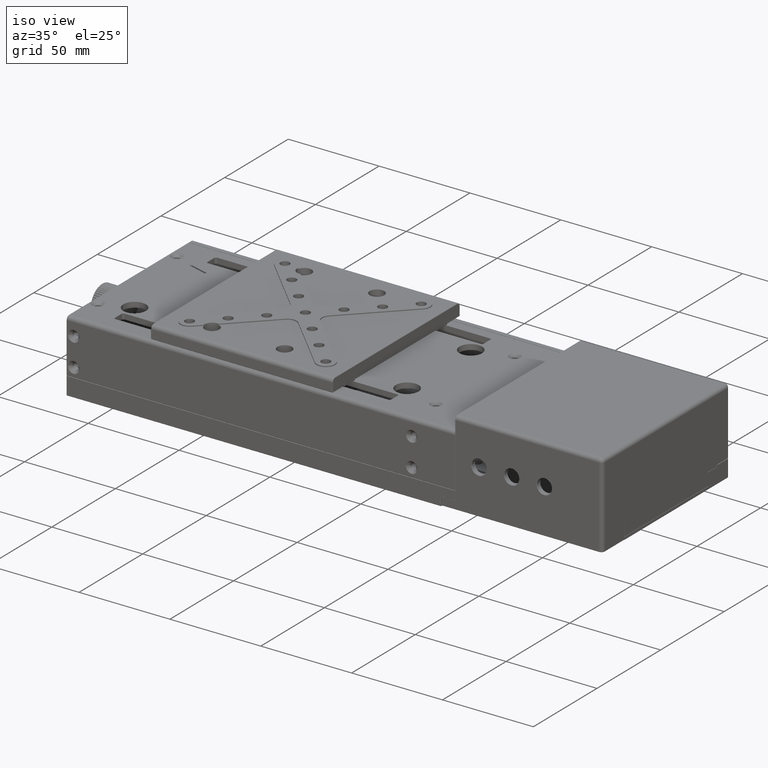
[diagram: clean part render]
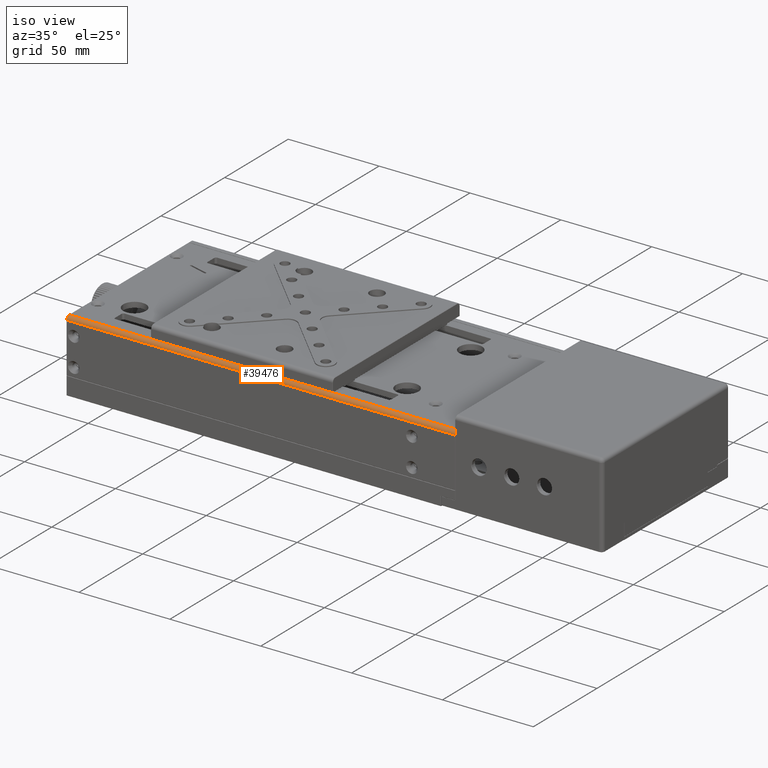
[diagram: same view with one face highlighted and labeled with its STEP entity id]
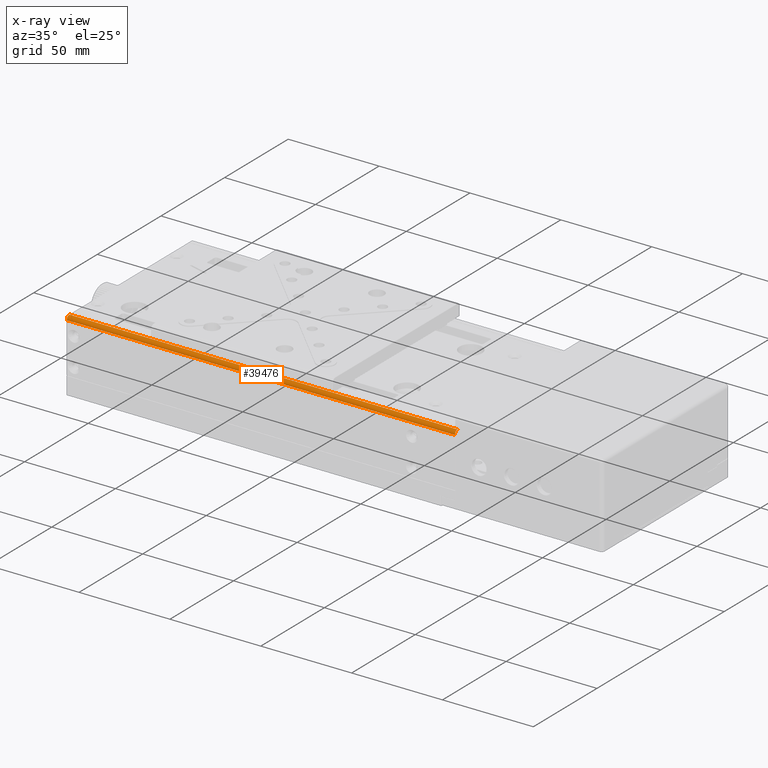
[diagram: x-ray of the same camera — body ghosted, the highlighted face saturated]
A machine part, iso view. The second image highlights one B-rep face of the part: STEP entity #39476.
The next image is the same camera in x-ray: the body ghosted, the highlighted face saturated — about 0% of this face is hidden behind the body in this view.
In plain terms, the highlighted cylindrical surface (edge-blend (fillet) strip) has radius 2 mm, axis along (1, 0, 0).
Its self-contained STEP definition (entity closure, byte-faithful):
#180 = AXIS2_PLACEMENT_3D ( 'NONE', #71434, #20059, #65802 ) ;
#3603 = DIRECTION ( 'NONE',  ( -1.000000000000000000, 0.000000000000000000, 0.000000000000000000 ) ) ;
#4531 = VERTEX_POINT ( 'NONE', #20828 ) ;
#6115 = VECTOR ( 'NONE', #21438, 1000.000000000000000 ) ;
#7153 = VERTEX_POINT ( 'NONE', #46581 ) ;
#9299 = EDGE_CURVE ( 'NONE', #33664, #29696, #60857, .T. ) ;
#15078 = DIRECTION ( 'NONE',  ( -1.000000000000000000, 0.000000000000000000, 0.000000000000000000 ) ) ;
#17126 = ORIENTED_EDGE ( 'NONE', *, *, #29145, .F. ) ;
#18609 = CYLINDRICAL_SURFACE ( 'NONE', #42995, 2.000000000000001776 ) ;
#20059 = DIRECTION ( 'NONE',  ( 1.000000000000000000, 0.000000000000000000, 0.000000000000000000 ) ) ;
#20828 = CARTESIAN_POINT ( 'NONE',  ( -168.7607912002899866, -38.00575141257550627, 34.50000000000000000 ) ) ;
#20831 = CARTESIAN_POINT ( 'NONE',  ( 44.83920879970990114, -40.00575141257549916, 32.50000000000000000 ) ) ;
#21438 = DIRECTION ( 'NONE',  ( 1.000000000000000000, 0.000000000000000000, 0.000000000000000000 ) ) ;
#23881 = CARTESIAN_POINT ( 'NONE',  ( -168.9607912002899752, -38.00575141257550627, 32.50000000000000000 ) ) ;
#26866 = CARTESIAN_POINT ( 'NONE',  ( 44.83920879970990114, -38.00575141257550627, 32.50000000000000000 ) ) ;
#28356 = CIRCLE ( 'NONE', #31988, 2.000000000000001776 ) ;
#28616 = ORIENTED_EDGE ( 'NONE', *, *, #67483, .T. ) ;
#29145 = EDGE_CURVE ( 'NONE', #4531, #7153, #57061, .T. ) ;
#29511 = DIRECTION ( 'NONE',  ( 0.000000000000000000, 1.000000000000000000, 0.000000000000000000 ) ) ;
#29696 = VERTEX_POINT ( 'NONE', #37565 ) ;
#31988 = AXIS2_PLACEMENT_3D ( 'NONE', #26866, #3603, #50456 ) ;
#31993 = ORIENTED_EDGE ( 'NONE', *, *, #34877, .T. ) ;
#33664 = VERTEX_POINT ( 'NONE', #20831 ) ;
#34877 = EDGE_CURVE ( 'NONE', #33664, #7153, #28356, .T. ) ;
#37565 = CARTESIAN_POINT ( 'NONE',  ( -168.7607912002899866, -40.00575141257549916, 32.50000000000000000 ) ) ;
#39476 = ADVANCED_FACE ( 'NONE', ( #53496 ), #18609, .T. ) ;
#41113 = DIRECTION ( 'NONE',  ( 1.000000000000000000, 0.000000000000000000, 0.000000000000000000 ) ) ;
#42995 = AXIS2_PLACEMENT_3D ( 'NONE', #23881, #41113, #29511 ) ;
#45406 = CARTESIAN_POINT ( 'NONE',  ( 45.03920879970989688, -38.00575141257550627, 34.50000000000000000 ) ) ;
#46085 = EDGE_LOOP ( 'NONE', ( #61112, #31993, #17126, #28616 ) ) ;
#46581 = CARTESIAN_POINT ( 'NONE',  ( 44.83920879970990114, -38.00575141257550627, 34.50000000000000000 ) ) ;
#50456 = DIRECTION ( 'NONE',  ( 0.000000000000000000, -1.000000000000000000, 0.000000000000000000 ) ) ;
#53496 = FACE_OUTER_BOUND ( 'NONE', #46085, .T. ) ;
#57061 = LINE ( 'NONE', #45406, #6115 ) ;
#60857 = LINE ( 'NONE', #66453, #62225 ) ;
#61112 = ORIENTED_EDGE ( 'NONE', *, *, #9299, .F. ) ;
#62225 = VECTOR ( 'NONE', #15078, 1000.000000000000000 ) ;
#65802 = DIRECTION ( 'NONE',  ( 0.000000000000000000, 1.000000000000000000, 0.000000000000000000 ) ) ;
#66050 = CIRCLE ( 'NONE', #180, 2.000000000000001776 ) ;
#66453 = CARTESIAN_POINT ( 'NONE',  ( -168.9607912002899752, -40.00575141257549916, 32.50000000000000000 ) ) ;
#67483 = EDGE_CURVE ( 'NONE', #4531, #29696, #66050, .T. ) ;
#71434 = CARTESIAN_POINT ( 'NONE',  ( -168.7607912002899866, -38.00575141257550627, 32.50000000000000000 ) ) ;